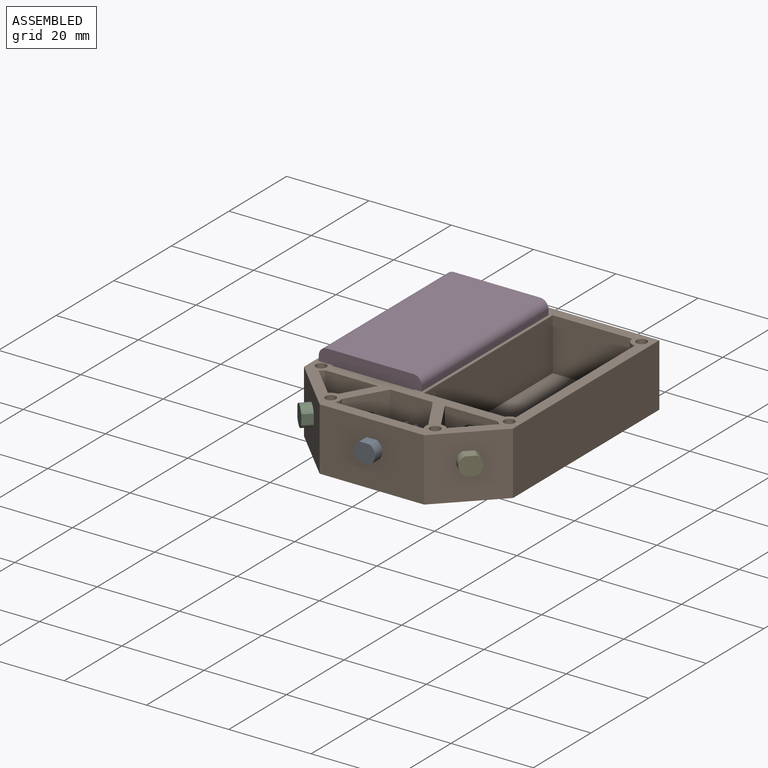
[diagram: assembled view]
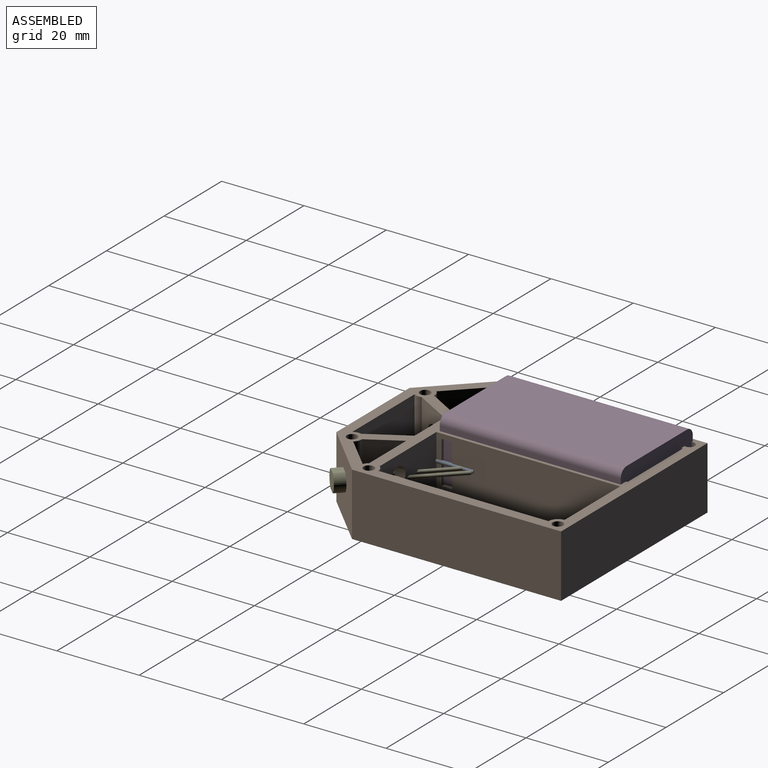
[diagram: assembled view, second angle]
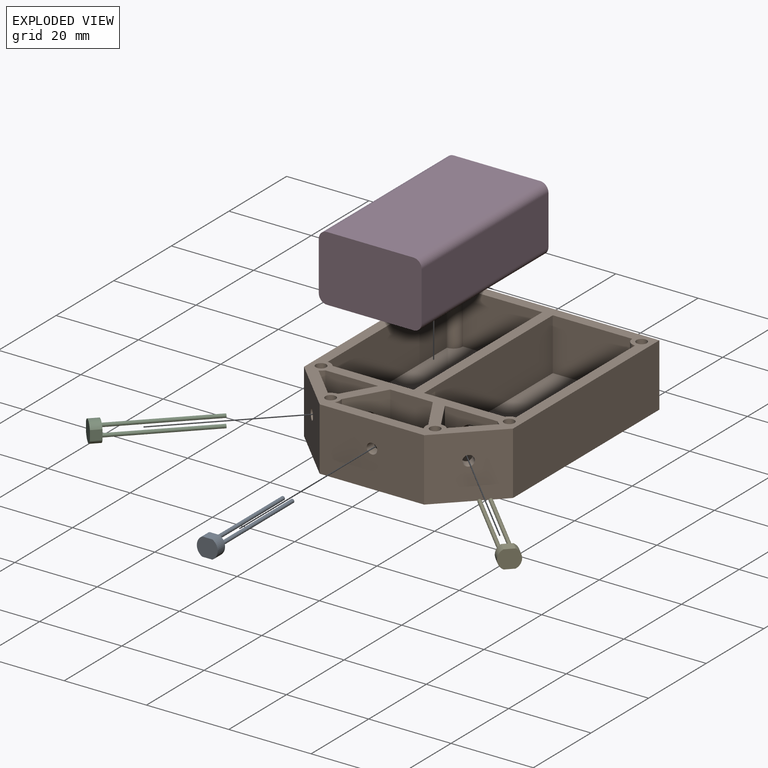
[diagram: exploded view]
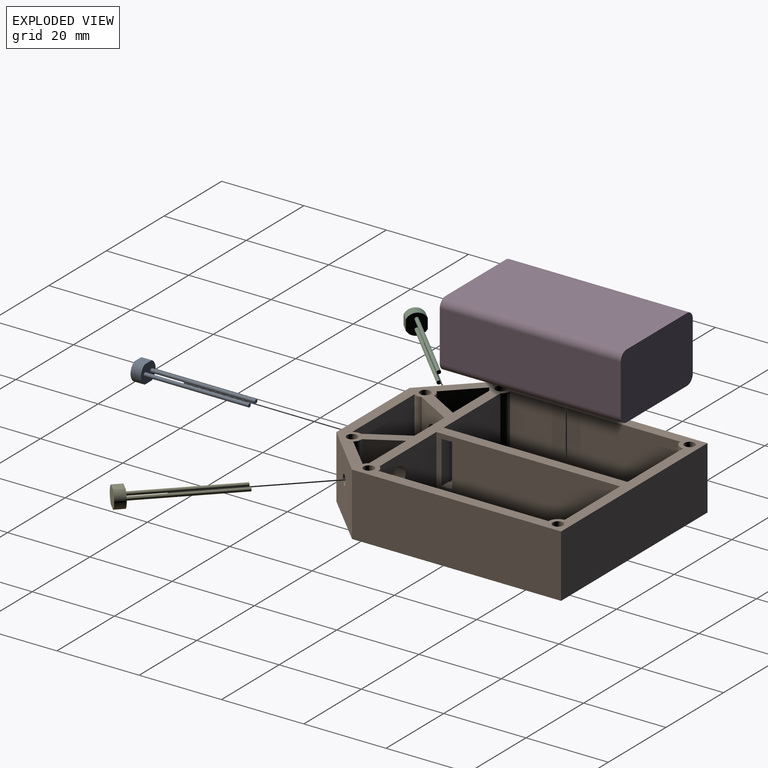
[diagram: exploded view, second angle]
ASSEMBLY  parts=5 mates=4
PART A: 10 faces, bbox 5.1x4.4x27.9 mm
  f0: plane 2.54x2.46mm, normal (0,1,0), area 6.2mm2, adj f1,f3,f4,f5
  f1: cylinder r=2.54mm len=4.45mm, axis (0,0,-1), area 13.7mm2, adj f0,f2,f4,f5
  f2: plane 2.54x2.46mm, normal (0,-1,0), area 6.2mm2, adj f1,f3,f4,f5
  f3: cylinder r=2.54mm len=4.45mm, axis (0,0,-1), area 13.7mm2, adj f0,f2,f4,f5
  f4: plane 5.08x4.45mm, normal (0,0,1), area 19.2mm2, adj f0,f1,f2,f3
  f5: plane 5.08x4.45mm, normal (0,0,-1), area 18mm2, adj f0,f1,f2,f3,f6,f8
  f6: cylinder r=0.44mm len=25.4mm, axis (0,0,1), area 70.9mm2, adj f5,f7
  f7: plane 0.89x0.89mm, normal (0,0,-1), area 0.6mm2, adj f6
  f8: cylinder r=0.44mm len=25.4mm, axis (0,0,1), area 70.9mm2, adj f5,f9
  f9: plane 0.89x0.89mm, normal (0,0,-1), area 0.6mm2, adj f8
PART B: 63 faces, bbox 50.8x63.5x15.2 mm
  f0: plane 44.67x12.7mm, normal (1,0,0), area 540.3mm2, adj f27,f28,f41,f42,f59,f60,f61,f62
  f1: plane 44.67x12.7mm, normal (-1,0,0), area 540.3mm2, adj f22,f26,f41,f49,f59,f60,f61,f62
  f2: plane 50.8x15.24mm, normal (1,0,0), area 774.2mm2, adj f3,f7,f8,f41
  f3: plane 50.8x15.24mm, normal (0,1,0), area 774.2mm2, adj f2,f4,f8,f41
  f4: plane 50.8x15.24mm, normal (-1,0,0), area 774.2mm2, adj f3,f5,f8,f41
  f5: plane 15.24x12.7mm, normal (-0.71,-0.71,0), area 268.7mm2, adj f4,f6,f8,f41,f55
  f6: plane 25.4x15.24mm, normal (0,-1,0), area 382mm2, adj f5,f7,f8,f41,f53
  f7: plane 15.24x12.7mm, normal (0.71,-0.71,0), area 268.7mm2, adj f2,f6,f8,f41,f54
  f8: plane 63.5x50.8mm, normal (0,0,-1), area 3064.5mm2, adj f2,f3,f4,f5,f6,f7
  f9: plane 12.7x7.59mm, normal (0.71,0.71,0), area 131.2mm2, adj f10,f40,f41,f52,f55
  f10: cylinder r=2.29mm len=12.7mm, axis (0,0,-1), area 17.4mm2, adj f9,f11,f41,f52
  f11: plane 12.85x12.7mm, normal (0,-1,0), area 163.2mm2, adj f10,f12,f41,f52
  f12: plane 12.7x7.66mm, normal (-0.87,0.5,0), area 92.1mm2, adj f11,f40,f41,f52,f56
  f13: cylinder r=2.29mm len=12.7mm, axis (0,0,-1), area 25.9mm2, adj f14,f31,f41,f51
  f14: plane 12.7x9.26mm, normal (0.87,-0.5,0), area 115.5mm2, adj f13,f15,f41,f51,f56
  f15: plane 12.7x10.35mm, normal (0,-1,0), area 131.4mm2, adj f14,f16,f41,f51
  f16: plane 12.7x9.26mm, normal (-0.87,-0.5,0), area 115.5mm2, adj f15,f17,f41,f51,f57
  f17: cylinder r=2.29mm len=12.7mm, axis (0,0,-1), area 25.9mm2, adj f16,f31,f41,f51
  f18: plane 12.7x7.59mm, normal (-0.71,0.71,0), area 131.2mm2, adj f19,f32,f41,f50,f54
  f19: cylinder r=2.29mm len=12.7mm, axis (0,0,-1), area 26.9mm2, adj f18,f20,f41,f50
  f20: plane 12.7x7.66mm, normal (0.87,0.5,0), area 92.1mm2, adj f19,f21,f41,f50,f57
  f21: plane 12.85x12.7mm, normal (0,-1,0), area 142.9mm2, adj f20,f32,f41,f50,f58
  f22: plane 19.69x12.7mm, normal (0,1,0), area 250.1mm2, adj f1,f23,f41,f49
  f23: cylinder r=2.29mm len=12.7mm, axis (0,0,-1), area 28.5mm2, adj f22,f24,f41,f49
  f24: plane 41.37x12.7mm, normal (1,0,0), area 525.3mm2, adj f23,f25,f41,f49
  f25: cylinder r=2.29mm len=12.7mm, axis (0,0,-1), area 45.6mm2, adj f24,f26,f41,f49
  f26: plane 19.3x12.7mm, normal (0,-1,0), area 245.2mm2, adj f1,f25,f41,f49
  f27: plane 19.69x12.7mm, normal (0,1,0), area 229.8mm2, adj f0,f39,f41,f42,f58
  f28: plane 19.3x12.7mm, normal (0,-1,0), area 245.2mm2, adj f0,f29,f41,f42
  f29: cylinder r=2.29mm len=12.7mm, axis (0,0,-1), area 45.6mm2, adj f28,f30,f41,f42
  f30: plane 41.37x12.7mm, normal (-1,0,0), area 525.3mm2, adj f29,f39,f41,f42
  f31: plane 21.6x12.7mm, normal (0,1,0), area 269.2mm2, adj f13,f17,f41,f51,f53
  f32: cylinder r=2.29mm len=12.7mm, axis (0,0,-1), area 17.4mm2, adj f18,f21,f41,f50
  f33: cylinder r=1.27mm len=12.7mm, axis (0,0,-1), area 101.3mm2, adj f41,f48
  f34: cylinder r=1.27mm len=12.7mm, axis (0,0,-1), area 101.3mm2, adj f41,f47
  f35: cylinder r=1.27mm len=12.7mm, axis (0,0,-1), area 101.3mm2, adj f41,f46
  f36: cylinder r=1.27mm len=12.7mm, axis (0,0,-1), area 101.3mm2, adj f41,f45
  f37: cylinder r=1.27mm len=12.7mm, axis (0,0,-1), area 101.3mm2, adj f41,f44
  f38: cylinder r=1.27mm len=12.7mm, axis (0,0,-1), area 101.3mm2, adj f41,f43
  f39: cylinder r=2.29mm len=12.7mm, axis (0,0,-1), area 28.5mm2, adj f27,f30,f41,f42
  f40: cylinder r=2.29mm len=12.7mm, axis (0,0,-1), area 26.9mm2, adj f9,f12,f41,f52
  f41: plane 63.5x50.8mm, normal (0,0,1), area 796.8mm2, adj f0,f1,f2,f3,f4,f5,f6,f7
  f42: plane 44.67x21.59mm, normal (0,0,1), area 958.9mm2, adj f0,f27,f28,f29,f30,f39
  f43: plane 2.54x2.54mm, normal (0,0,1), area 5.1mm2, adj f38
  f44: plane 2.54x2.54mm, normal (0,0,1), area 5.1mm2, adj f37
  f45: plane 2.54x2.54mm, normal (0,0,1), area 5.1mm2, adj f36
  f46: plane 2.54x2.54mm, normal (0,0,1), area 5.1mm2, adj f35
  f47: plane 2.54x2.54mm, normal (0,0,1), area 5.1mm2, adj f34
  f48: plane 2.54x2.54mm, normal (0,0,1), area 5.1mm2, adj f33
  f49: plane 44.67x21.59mm, normal (0,0,1), area 958.9mm2, adj f1,f22,f23,f24,f25,f26
  f50: plane 13.9x8.44mm, normal (0,0,1), area 66.5mm2, adj f18,f19,f20,f21,f32
  f51: plane 21.6x11.21mm, normal (0,0,1), area 186.4mm2, adj f13,f14,f15,f16,f17,f31
  f52: plane 13.9x8.44mm, normal (0,0,1), area 66.5mm2, adj f9,f10,f11,f12,f40
  f53: cylinder r=1.27mm len=2.54mm, axis (0,-1,0), area 20.3mm2, adj f6,f31
  f54: cylinder r=1.27mm len=3.59mm, axis (0.71,-0.71,0), area 20.3mm2, adj f7,f18
  f55: cylinder r=1.27mm len=3.59mm, axis (-0.71,-0.71,0), area 20.3mm2, adj f5,f9
  f56: cylinder r=2.54mm len=5.67mm, axis (0.87,-0.5,0), area 40.5mm2, adj f12,f14
  f57: cylinder r=2.54mm len=5.67mm, axis (-0.87,-0.5,0), area 40.5mm2, adj f16,f20
  f58: cylinder r=2.54mm len=5.08mm, axis (0,-1,0), area 40.5mm2, adj f21,f27
  f59: plane 10.38x2.54mm, normal (0,-1,0), area 26.4mm2, adj f0,f1,f60,f62
  f60: plane 2.6x2.54mm, normal (0,0,-1), area 6.6mm2, adj f0,f1,f59,f61
  f61: plane 10.38x2.54mm, normal (0,1,0), area 26.4mm2, adj f0,f1,f60,f62
  f62: plane 2.6x2.54mm, normal (0,0,1), area 6.6mm2, adj f0,f1,f59,f61
PART C: same geometry as A
PART D: 10 faces, bbox 25x16x44 mm
  f0: plane 44x12mm, normal (-1,0,0), area 528mm2, adj f4,f5,f6,f9
  f1: plane 44x21mm, normal (0,-1,0), area 924mm2, adj f4,f5,f6,f7
  f2: plane 44x12mm, normal (1,0,0), area 528mm2, adj f4,f5,f7,f8
  f3: plane 44x21mm, normal (0,1,0), area 924mm2, adj f4,f5,f8,f9
  f4: plane 25x16mm, normal (0,0,1), area 396.6mm2, adj f0,f1,f2,f3,f6,f7,f8,f9
  f5: plane 25x16mm, normal (0,0,-1), area 396.6mm2, adj f0,f1,f2,f3,f6,f7,f8,f9
  f6: cylinder r=2mm len=44mm, axis (0,0,-1), area 138.2mm2, adj f0,f1,f4,f5
  f7: cylinder r=2mm len=44mm, axis (0,0,1), area 138.2mm2, adj f1,f2,f4,f5
  f8: cylinder r=2mm len=44mm, axis (0,0,-1), area 138.2mm2, adj f2,f3,f4,f5
  f9: cylinder r=2mm len=44mm, axis (0,0,1), area 138.2mm2, adj f0,f3,f4,f5
PART E: same geometry as A
PLACE A rot(axis=(1,0,0),90deg) t=(0,-33.2,8.89)mm
PLACE B t=(0,4.9,0)mm
PLACE C rot(axis=(0.68,0.28,-0.68),148.6deg) t=(-19.05,-26.85,8.89)mm
PLACE D rot(axis=(1,0,0),90deg) t=(-12.01,27.37,10.54)mm
PLACE E rot(axis=(0.86,0.36,0.36),98.4deg) t=(19.05,-26.85,8.89)mm
MATE fastened D.f1 <-> B.f49  axis (0,0,-1) through (-12.01,5.37,2.54)mm
MATE fastened B.f54 <-> E.f1  axis (0.71,-0.71,0) through (19.05,-26.85,8.89)mm
MATE fastened C.f1 <-> B.f55  axis (0.71,0.71,0) through (-19.05,-26.85,8.89)mm
MATE fastened A.f1 <-> B.f53  axis (0,1,0) through (0,-33.2,8.89)mm
